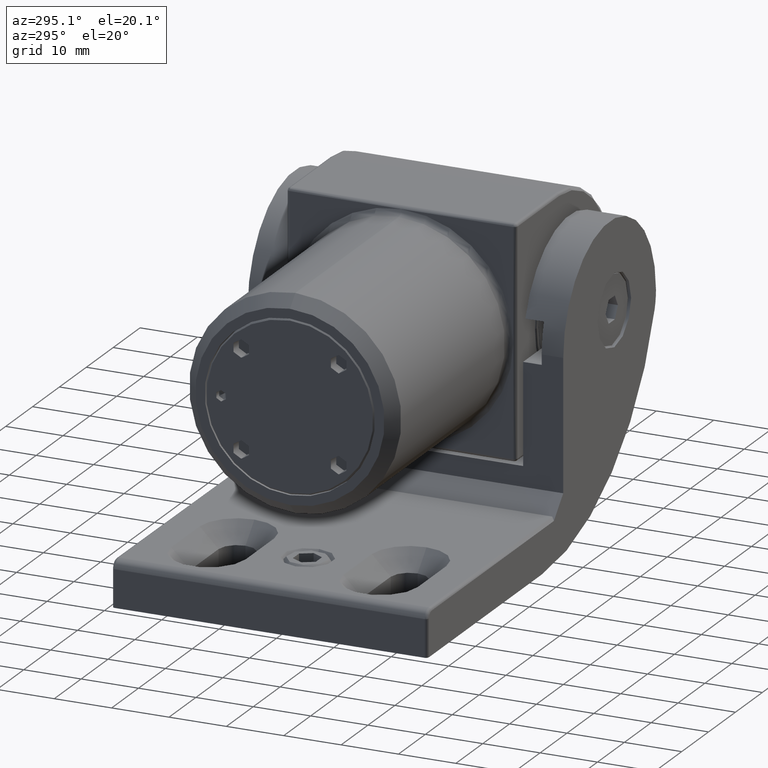
[diagram: clean part render]
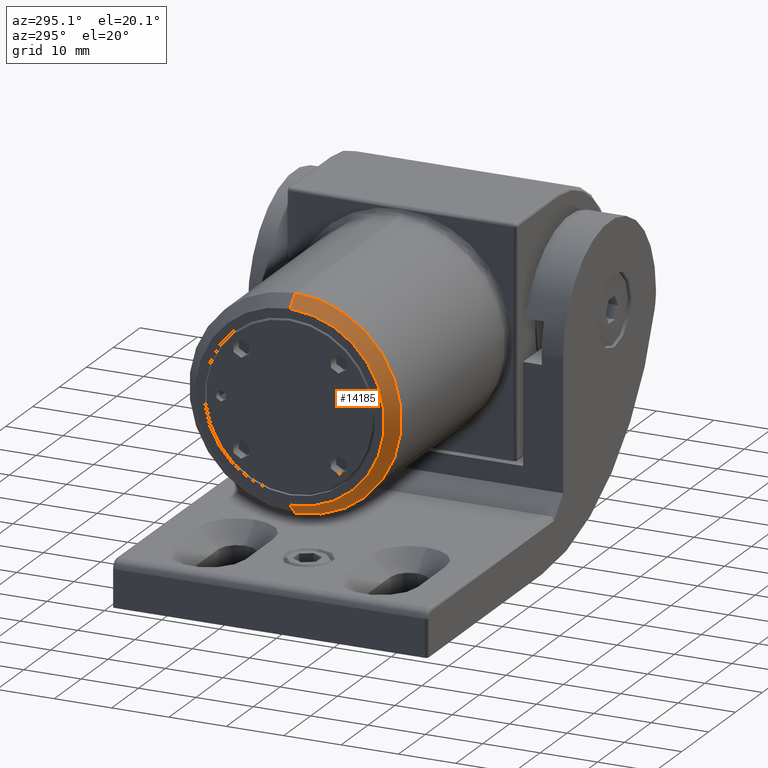
[diagram: same view with one face highlighted and labeled with its STEP entity id]
A machine part, auxiliary view. The second image highlights one B-rep face of the part: STEP entity #14185.
In plain terms, the highlighted conical surface has half-angle 45 deg.
Its self-contained STEP definition (entity closure, byte-faithful):
#354 = EDGE_CURVE ( 'NONE', #13456, #17035, #22892, .T. ) ;
#504 = AXIS2_PLACEMENT_3D ( 'NONE', #19003, #11221, #13180 ) ;
#1262 = VERTEX_POINT ( 'NONE', #5580 ) ;
#2203 = VERTEX_POINT ( 'NONE', #22865 ) ;
#2746 = FACE_OUTER_BOUND ( 'NONE', #5626, .T. ) ;
#3473 = EDGE_CURVE ( 'NONE', #13456, #2203, #7524, .T. ) ;
#3901 = DIRECTION ( 'NONE',  ( 1.000000000000000000, 0.000000000000000000, 0.000000000000000000 ) ) ;
#4381 = VECTOR ( 'NONE', #11717, 1000.000000000000000 ) ;
#5580 = CARTESIAN_POINT ( 'NONE',  ( 18.49999999999997513, 2.265596578422601424E-15, 39.49999999999996447 ) ) ;
#5626 = EDGE_LOOP ( 'NONE', ( #15411, #6073, #19223, #17284 ) ) ;
#6073 = ORIENTED_EDGE ( 'NONE', *, *, #3473, .F. ) ;
#6288 = DIRECTION ( 'NONE',  ( 0.000000000000000000, 0.000000000000000000, 1.000000000000000000 ) ) ;
#6614 = EDGE_CURVE ( 'NONE', #2203, #1262, #16293, .T. ) ;
#7007 = CARTESIAN_POINT ( 'NONE',  ( -18.50000000000002487, 0.000000000000000000, 39.49999999999996447 ) ) ;
#7524 = CIRCLE ( 'NONE', #7654, 16.49999999999997158 ) ;
#7654 = AXIS2_PLACEMENT_3D ( 'NONE', #17993, #6288, #11978 ) ;
#9740 = CARTESIAN_POINT ( 'NONE',  ( 16.49999999999997158, 2.020667218593129550E-15, 41.50000000000000000 ) ) ;
#11108 = AXIS2_PLACEMENT_3D ( 'NONE', #23377, #11627, #3901 ) ;
#11221 = DIRECTION ( 'NONE',  ( 0.000000000000000000, 0.000000000000000000, -1.000000000000000000 ) ) ;
#11627 = DIRECTION ( 'NONE',  ( -0.000000000000000000, -0.000000000000000000, -1.000000000000000000 ) ) ;
#11717 = DIRECTION ( 'NONE',  ( 0.7071067811865456854, 8.659560562354909439E-17, -0.7071067811865493491 ) ) ;
#11978 = DIRECTION ( 'NONE',  ( 1.000000000000000000, 0.000000000000000000, 0.000000000000000000 ) ) ;
#13016 = EDGE_CURVE ( 'NONE', #1262, #17035, #17461, .T. ) ;
#13180 = DIRECTION ( 'NONE',  ( -1.000000000000000000, 0.000000000000000000, 0.000000000000000000 ) ) ;
#13456 = VERTEX_POINT ( 'NONE', #13650 ) ;
#13650 = CARTESIAN_POINT ( 'NONE',  ( -16.49999999999997158, 0.000000000000000000, 41.50000000000000000 ) ) ;
#14185 = ADVANCED_FACE ( 'NONE', ( #2746 ), #21122, .T. ) ;
#14341 = CARTESIAN_POINT ( 'NONE',  ( -16.49999999999997158, 0.000000000000000000, 41.50000000000000000 ) ) ;
#15411 = ORIENTED_EDGE ( 'NONE', *, *, #6614, .F. ) ;
#16293 = LINE ( 'NONE', #9740, #4381 ) ;
#16770 = VECTOR ( 'NONE', #18517, 1000.000000000000000 ) ;
#17035 = VERTEX_POINT ( 'NONE', #7007 ) ;
#17284 = ORIENTED_EDGE ( 'NONE', *, *, #13016, .F. ) ;
#17461 = CIRCLE ( 'NONE', #11108, 18.50000000000000000 ) ;
#17993 = CARTESIAN_POINT ( 'NONE',  ( 0.000000000000000000, 0.000000000000000000, 41.50000000000000000 ) ) ;
#18517 = DIRECTION ( 'NONE',  ( -0.7071067811865456854, 0.000000000000000000, -0.7071067811865493491 ) ) ;
#19003 = CARTESIAN_POINT ( 'NONE',  ( 0.000000000000000000, 0.000000000000000000, 41.50000000000000000 ) ) ;
#19223 = ORIENTED_EDGE ( 'NONE', *, *, #354, .T. ) ;
#21122 = CONICAL_SURFACE ( 'NONE', #504, 16.49999999999997158, 0.7853981633974457255 ) ;
#22865 = CARTESIAN_POINT ( 'NONE',  ( 16.49999999999997158, 2.143131898507866276E-15, 41.50000000000000000 ) ) ;
#22892 = LINE ( 'NONE', #14341, #16770 ) ;
#23377 = CARTESIAN_POINT ( 'NONE',  ( -2.428612866367529932E-14, 0.000000000000000000, 39.49999999999996447 ) ) ;